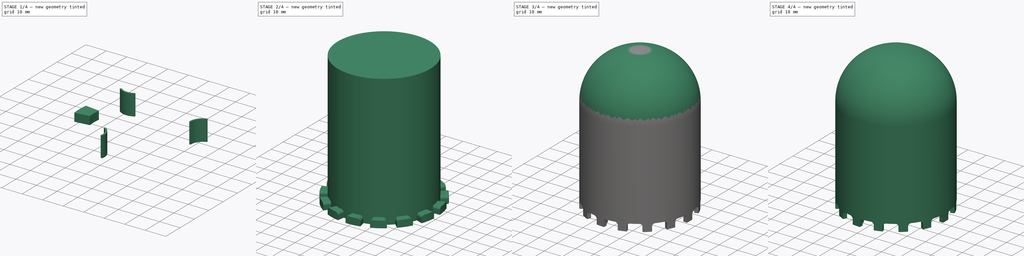
[diagram: build sequence overview — one tinted view per stage of 4, left to right]
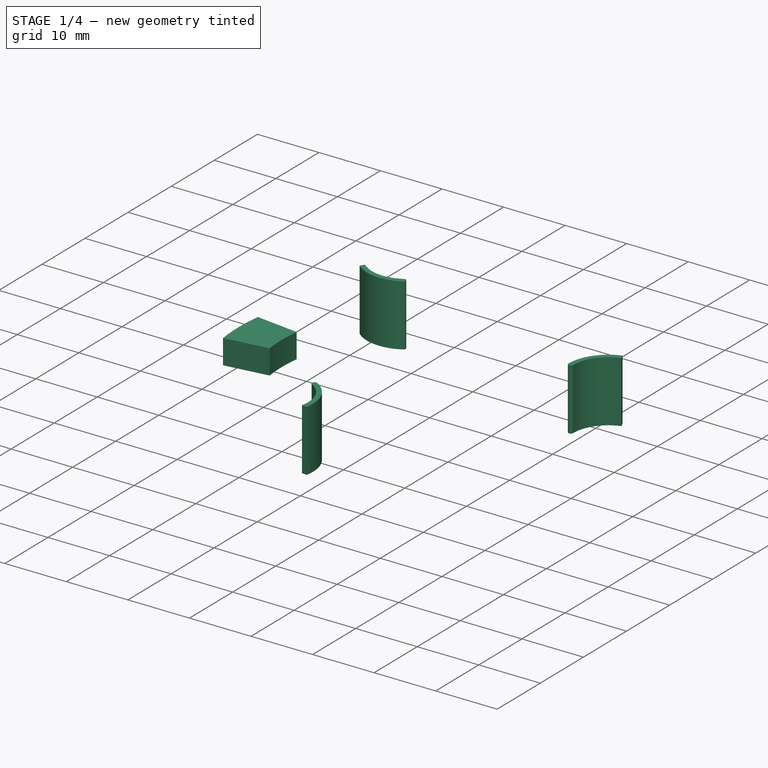
[diagram: stage 1 of 4 — iso view after this stage's code; geometry added in this stage tinted green]
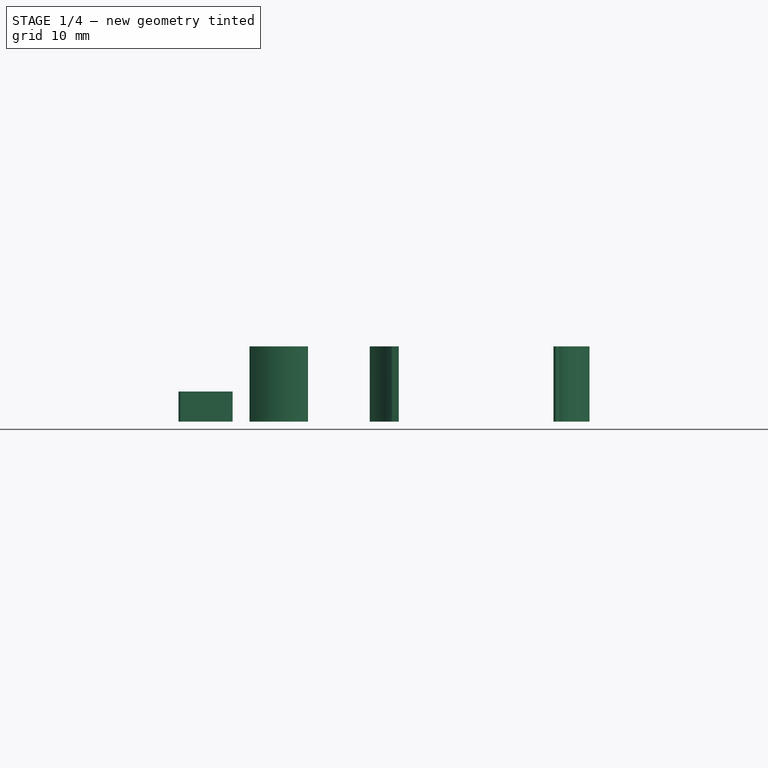
[diagram: stage 1 of 4 — front view after this stage's code; geometry added in this stage tinted green]
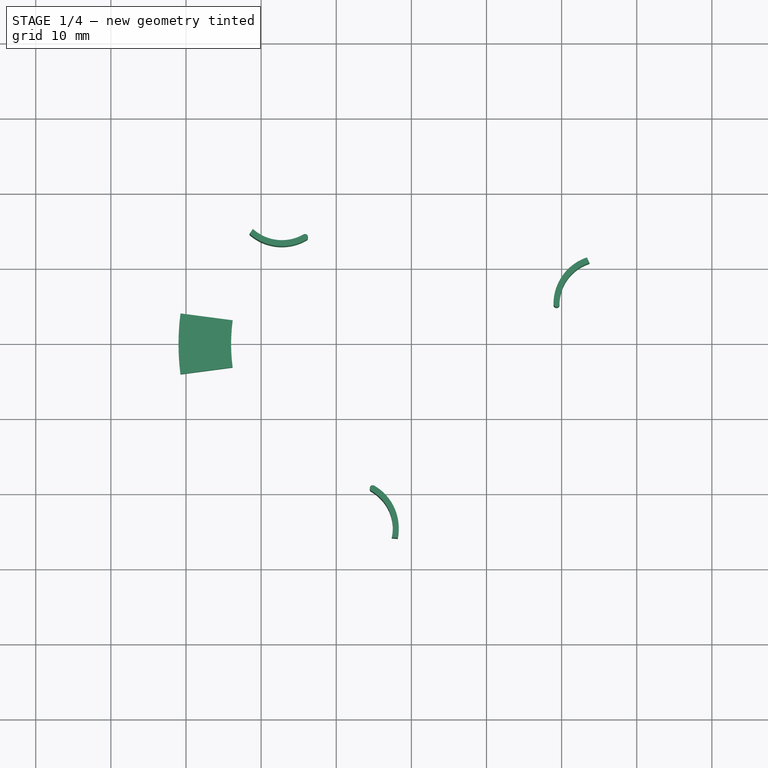
[diagram: stage 1 of 4 — top view after this stage's code; geometry added in this stage tinted green]
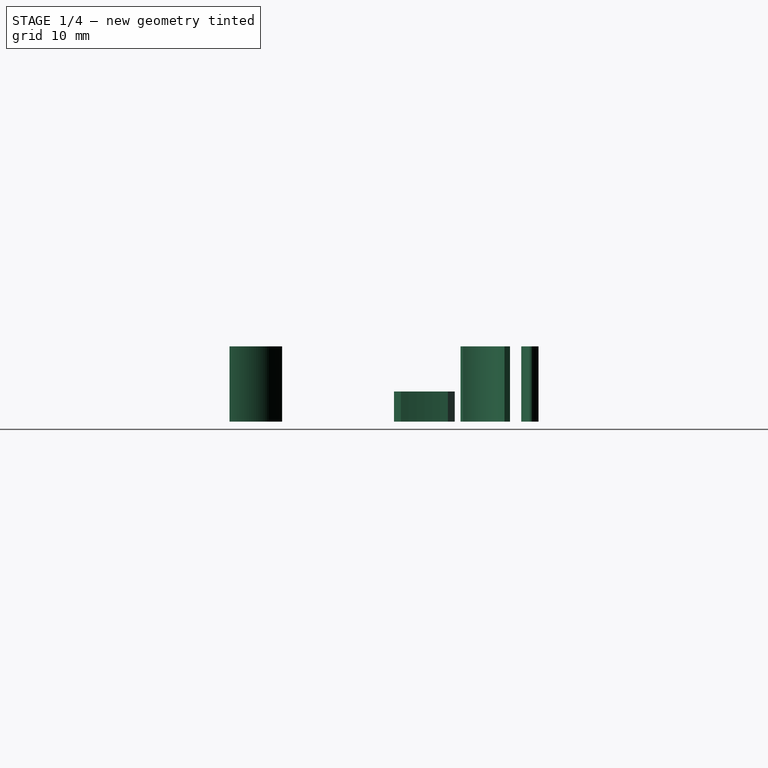
[diagram: stage 1 of 4 — right view after this stage's code; geometry added in this stage tinted green]
FCSTD DOCUMENT  (FreeCAD 0.16R6707 (Git))
Label: dome_50mm
License: CreativeCommons Attribution-ShareAlike
LicenseURL: http://creativecommons.org/licenses/by-sa/4.0/
objects: Sketcher::SketchObject×4, PartDesign::Fillet×4, PartDesign::Pad×2, Part::FeaturePython×2, PartDesign::Revolution×1, Part::Cut×1, Part::MultiFuse×1, Part::Feature×1
note: 19 computed .brp shape members not serialized (recipe doc carries the construction recipe); baked Part::Feature solids carry a one-line shape summary decoded from their .brp

FEATURE [Sketcher::SketchObject] Sketch001
  sketch-geometry (7):
    g0: ArcOfCircle CenterX=0 CenterY=0 CenterZ=0 NormalX=0 NormalY=0 NormalZ=1 Radius=24 StartAngle=3.01069 EndAngle=3.27249
    g1: ArcOfCircle CenterX=0 CenterY=0 CenterZ=0 NormalX=0 NormalY=0 NormalZ=1 Radius=31 StartAngle=3.01069 EndAngle=3.27249
    g2: LineSegment StartX=-30.7348 StartY=4.04631 StartZ=0 EndX=-23.7947 EndY=3.13263 EndZ=0
    g3: LineSegment StartX=-30.7348 StartY=-4.04631 StartZ=0 EndX=-23.7947 EndY=-3.13263 EndZ=0
    g4: LineSegment [constr] StartX=-23.7947 StartY=3.13263 StartZ=0 EndX=0 EndY=0 EndZ=0
    g5: LineSegment [constr] StartX=-23.7947 StartY=-3.13263 StartZ=0 EndX=0 EndY=0 EndZ=0
    g6: LineSegment [constr] StartX=-23.7947 StartY=3.13263 StartZ=0 EndX=-23.7947 EndY=-3.13263 EndZ=0
  constraints (18):
    c: Coincident(g0,g-1)
    c: Coincident(g1,g-1)
    c: Coincident(g2,g1)
    c: Coincident(g3,g1)
    c: Coincident(g2,g0)
    c: Coincident(g3,g0)
    c: Coincident(g4,g0)
    c: Coincident(g4,g-1)
    c: Coincident(g5,g0)
    c: Coincident(g5,g-1)
    c: Parallel(g2,g4)
    c: Parallel(g3,g5)
    c: Distance(g2) = 7
    c: Radius(g0) = 24
    c: Angle(g4,g5) = 0.261799
    c: Coincident(g6,g0)
    c: Coincident(g6,g0)
    c: Vertical(g6)
FEATURE [PartDesign::Pad] Pad
  Length = 4
  Length2 = 100
  Sketch = -> Sketch001
  Type = 0
FEATURE [Sketcher::SketchObject] Sketch002
  sketch-geometry (8):
    g0: Circle [constr] CenterX=0 CenterY=0 CenterZ=0 NormalX=0 NormalY=0 NormalZ=1 Radius=20
    g1: Circle [constr] CenterX=0 CenterY=0 CenterZ=0 NormalX=0 NormalY=0 NormalZ=1 Radius=26
    g2: ArcOfCircle CenterX=27.9618 CenterY=0.64222 CenterZ=0 NormalX=0 NormalY=0 NormalZ=1 Radius=10.5992 StartAngle=1.9714 EndAngle=2.56312
    g3: ArcOfCircle CenterX=28.2626 CenterY=0.504784 CenterZ=0 NormalX=0 NormalY=0 NormalZ=1 Radius=11.8684 StartAngle=1.99286 EndAngle=2.56609
    g4: ArcOfCircle CenterX=18.6926 CenterY=6.69498 CenterZ=0 NormalX=0 NormalY=0 NormalZ=1 Radius=0.471244 StartAngle=2.53326 EndAngle=5.70469
    g5: LineSegment StartX=23.4007 StartY=11.3317 StartZ=0 EndX=23.4007 EndY=11.3316 EndZ=0
    g6: LineSegment StartX=23.4002 StartY=11.3327 StartZ=0 EndX=24.0148 EndY=9.96436 EndZ=0
    g7: LineSegment [constr] StartX=18.3059 StartY=6.96429 StartZ=0 EndX=19.5397 EndY=6.11078 EndZ=0
  constraints (13):
    c: Coincident(g1,g0)
    c: Coincident(g0,g-1)
    c: Radius(g0) = 20
    c: Radius(g1) = 26
    c: PointOnObject(g2,g1)
    c: PointOnObject(g3,g1)
    c: Coincident(g4,g2)
    c: Tangent(g4,g2)
    c: Coincident(g5,g3)
    c: PointOnObject(g5,g1)
    c: Tangent(g5,g1)
    c: Coincident(g3,g4)
    c: Coincident(g3,g7)
FEATURE [Sketcher::SketchObject] Sketch003
  sketch-geometry (6):
    g0: Circle [constr] CenterX=0 CenterY=0 CenterZ=0 NormalX=0 NormalY=0 NormalZ=1 Radius=20
    g1: Circle [constr] CenterX=0 CenterY=0 CenterZ=0 NormalX=0 NormalY=0 NormalZ=1 Radius=26
    g2: ArcOfCircle CenterX=25.4394 CenterY=5.21015 CenterZ=0 NormalX=0 NormalY=0 NormalZ=1 Radius=5.73134 StartAngle=1.87767 EndAngle=3.14257
    g3: ArcOfCircle CenterX=25.4394 CenterY=5.21015 CenterZ=0 NormalX=0 NormalY=0 NormalZ=1 Radius=6.52527 StartAngle=1.89375 EndAngle=3.14257
    g4: ArcOfCircle CenterX=19.3111 CenterY=5.20415 CenterZ=0 NormalX=0 NormalY=0 NormalZ=1 Radius=0.396966 StartAngle=3.14256 EndAngle=6.28415
    g5: LineSegment StartX=23.3684 StartY=11.3981 StartZ=0 EndX=23.708 EndY=10.6737 EndZ=0
  constraints (15):
    c: Coincident(g0,g-1)
    c: Coincident(g1,g-1)
    c: Radius(g0) = 20
    c: Radius(g1) = 26
    c: Coincident(g3,g2)
    c: PointOnObject(g4,g0)
    c: Coincident(g4,g2)
    c: Coincident(g5,g2)
    c: Coincident(g3,g5)
    c: PointOnObject(g3,g1)
    c: PointOnObject(g2,g1)
    c: Coincident(g3,g4)
    c: Tangent(g4,g3)
    c: Tangent(g4,g2)
    c: Distance(g5) = 0.8
FEATURE [PartDesign::Pad] Pad001
  Length = 10
  Length2 = 100
  Sketch = -> Sketch003
  Type = 0
FEATURE [Part::FeaturePython] Array001  # Draft array (typed FeaturePython)
  Angle = 360
  ArrayType = 1
  Axis = (0,0,1)
  Base = -> Pad001
  Center = (0,0,0)
  Fuse = false
  IntervalAxis = (0,0,0)
  IntervalX = (1,0,0)
  IntervalY = (0,1,0)
  IntervalZ = (0,0,0)
  NumberPolar = 3
  NumberX = 0
  NumberY = 2
  NumberZ = 1
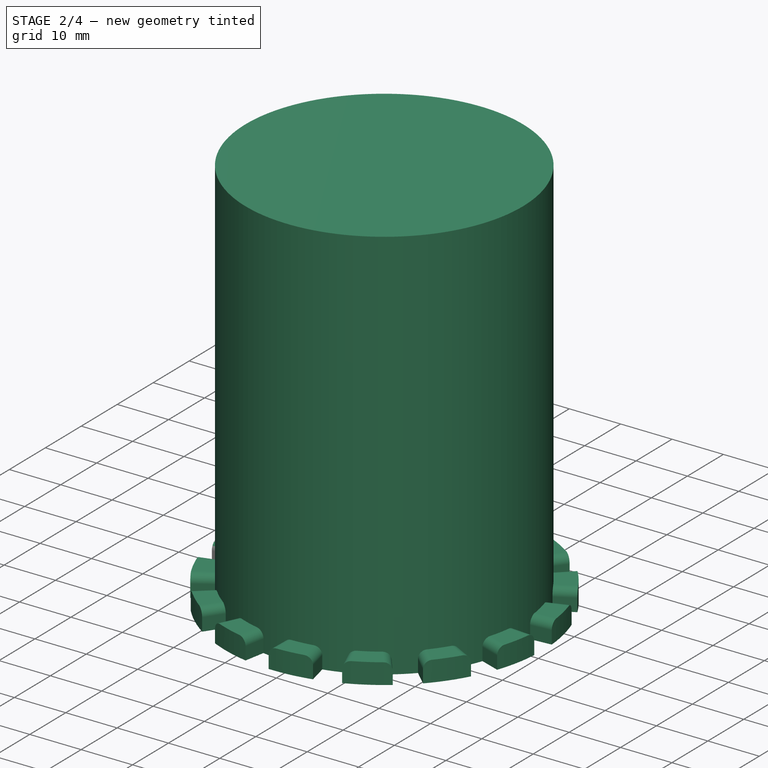
[diagram: stage 2 of 4 — iso view after this stage's code; geometry added in this stage tinted green]
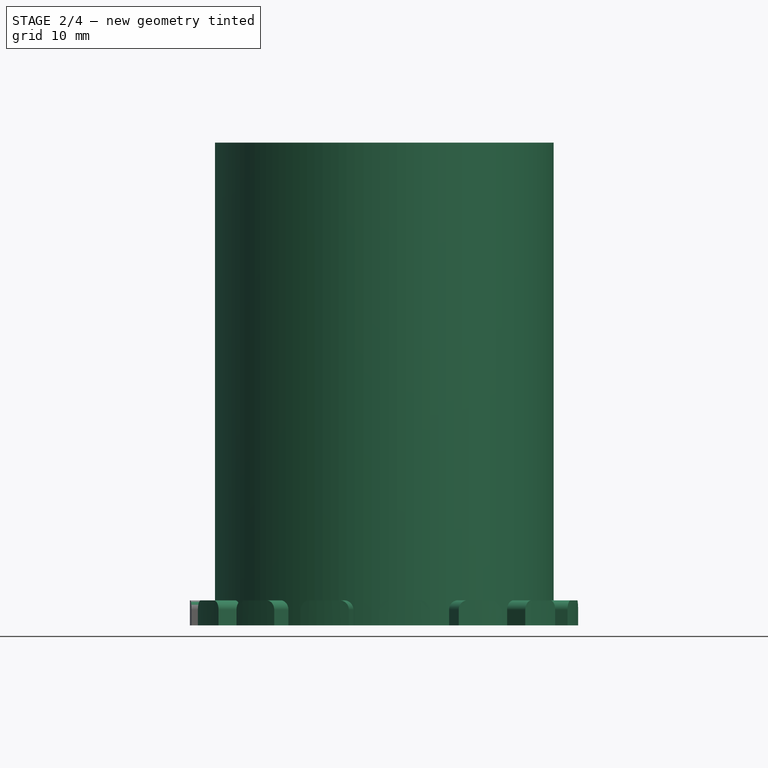
[diagram: stage 2 of 4 — front view after this stage's code; geometry added in this stage tinted green]
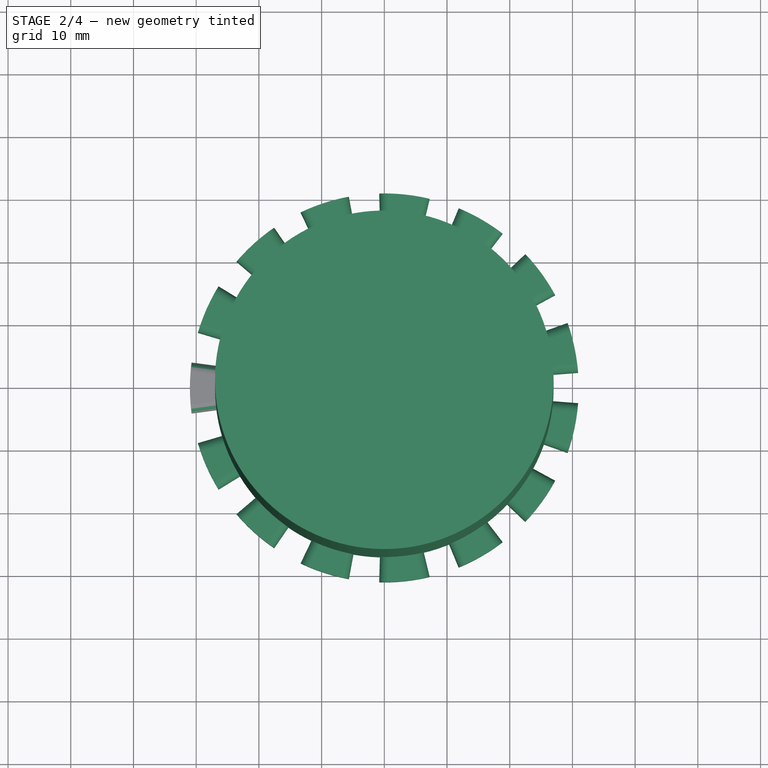
[diagram: stage 2 of 4 — top view after this stage's code; geometry added in this stage tinted green]
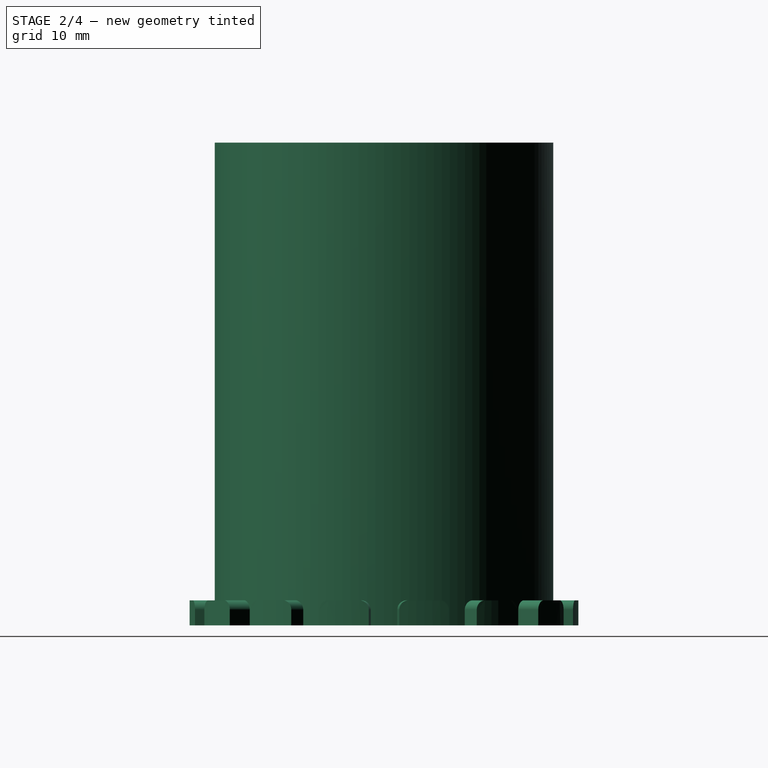
[diagram: stage 2 of 4 — right view after this stage's code; geometry added in this stage tinted green]
FEATURE [Sketcher::SketchObject] Sketch
  Placement = pos=(0,0,0) rot=(1,0,0;1.5708rad)
  sketch-geometry (7):
    g0: LineSegment StartX=-27 StartY=0 StartZ=0 EndX=-27 EndY=77 EndZ=0
    g1: LineSegment StartX=-27 StartY=77 StartZ=0 EndX=0 EndY=77 EndZ=0
    g2: LineSegment StartX=0 StartY=77 StartZ=0 EndX=0 EndY=75 EndZ=0
    g3: LineSegment StartX=0 StartY=75 StartZ=0 EndX=-3 EndY=75 EndZ=0
    g4: LineSegment StartX=-25 StartY=53 StartZ=0 EndX=-25 EndY=0 EndZ=0
    g5: LineSegment StartX=-25 StartY=0 StartZ=0 EndX=-27 EndY=0 EndZ=0
    g6: ArcOfCircle CenterX=-3 CenterY=53 CenterZ=0 NormalX=0 NormalY=0 NormalZ=1 Radius=22 StartAngle=1.5708 EndAngle=3.14159
  constraints (20):
    c: PointOnObject(g0,g-1)
    c: Vertical(g0)
    c: Coincident(g0,g1)
    c: PointOnObject(g1,g-2)
    c: Horizontal(g1)
    c: Coincident(g1,g2)
    c: Coincident(g2,g3)
    c: Horizontal(g3)
    c: PointOnObject(g4,g-1)
    c: Vertical(g4)
    c: Coincident(g4,g5)
    c: Coincident(g5,g0)
    c: PointOnObject(g2,g-2)
    c: DistanceY(g-1,g2) = 75  'h'
    c: Tangent(g3,g6) = -1.5708
    c: Tangent(g4,g6) = -1.5708
    c: DistanceX(g3,g-1) = 3
    c: DistanceX(g4,g-1) = 25
    c: DistanceY(g2,g2) = 2
    c: DistanceX(g5,g5) = 2
FEATURE [PartDesign::Revolution] Revolution
  Angle = 360
  Axis = (0,0,1)
  Base = (0,0,0)
  Placement = pos=(0,0,0) rot=(1,0,0;1.5708rad)
  ReferenceAxis = -> Sketch [V_Axis]
  Sketch = -> Sketch
FEATURE [PartDesign::Fillet] Fillet
  Base = -> Pad [Edge10,Edge4]
  Radius = 1.5
FEATURE [Part::FeaturePython] Array  # Draft array (typed FeaturePython)
  Angle = 360
  ArrayType = 1
  Axis = (0,0,1)
  Base = -> Fillet
  Center = (0,0,0)
  Fuse = false
  IntervalAxis = (0,0,0)
  IntervalX = (1,0,0)
  IntervalY = (0,1,0)
  IntervalZ = (0,0,0)
  NumberPolar = 15
  NumberX = 2
  NumberY = 2
  NumberZ = 1
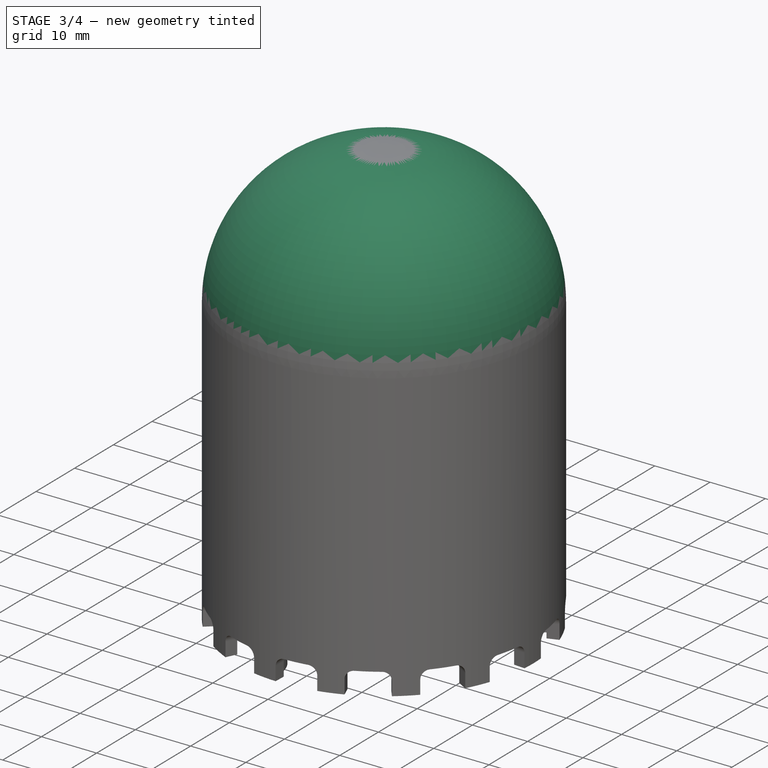
[diagram: stage 3 of 4 — iso view after this stage's code; geometry added in this stage tinted green]
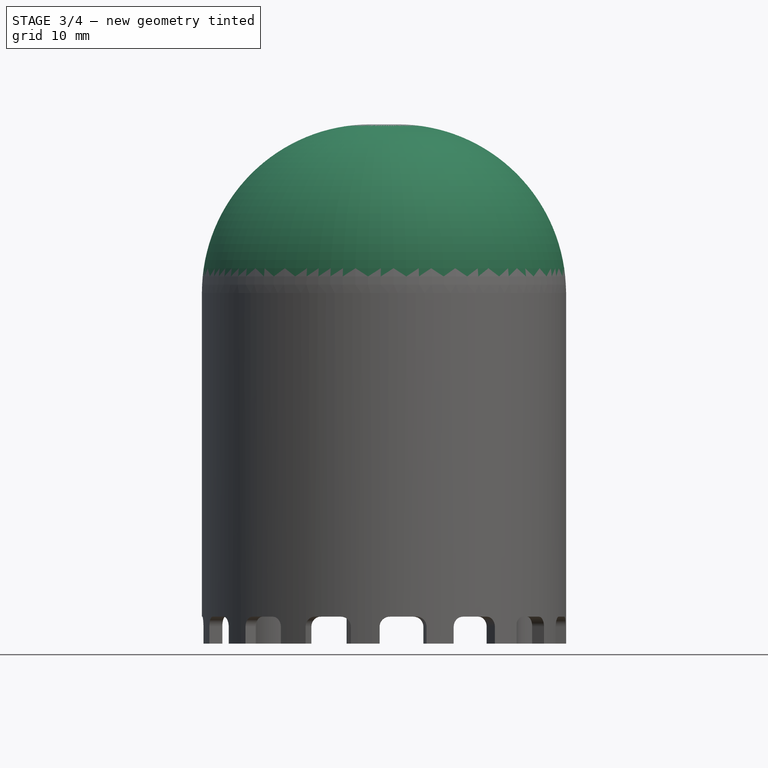
[diagram: stage 3 of 4 — front view after this stage's code; geometry added in this stage tinted green]
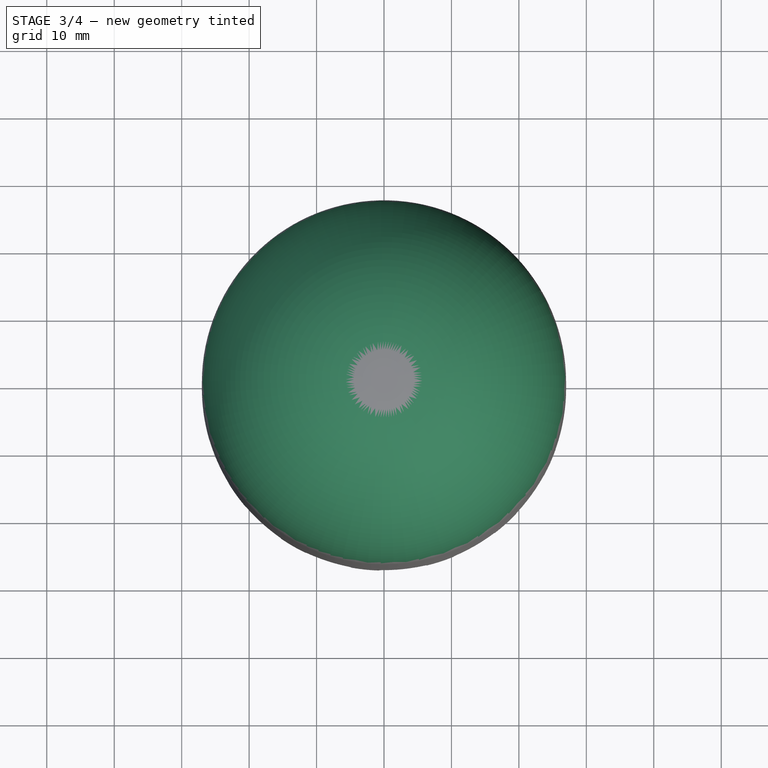
[diagram: stage 3 of 4 — top view after this stage's code; geometry added in this stage tinted green]
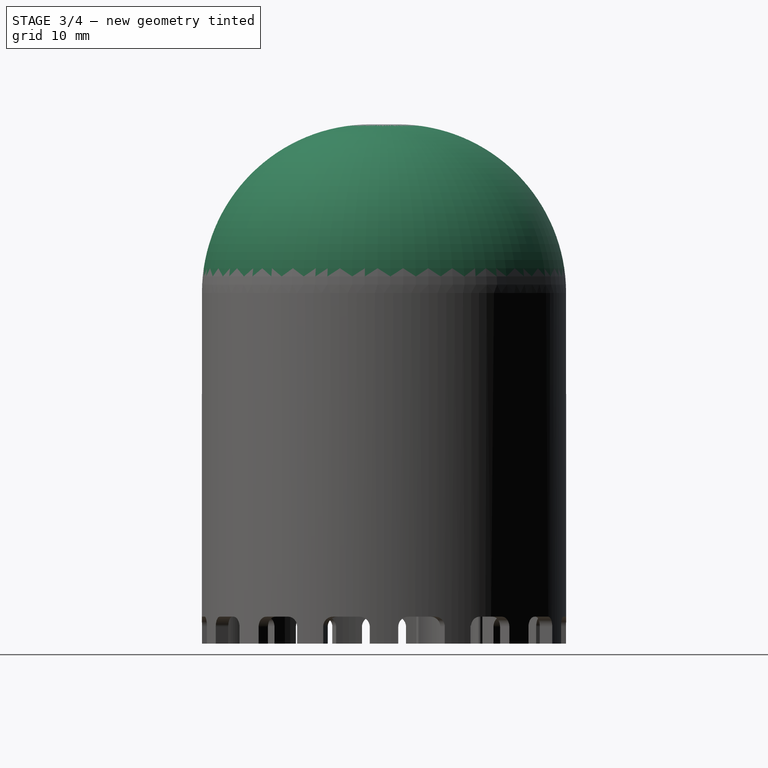
[diagram: stage 3 of 4 — right view after this stage's code; geometry added in this stage tinted green]
FEATURE [Part::Cut] Cut
  Base = -> Revolution
  Tool = -> Array
FEATURE [PartDesign::Fillet] Fillet001
  Base = -> Cut [Edge5]
  Radius = 25
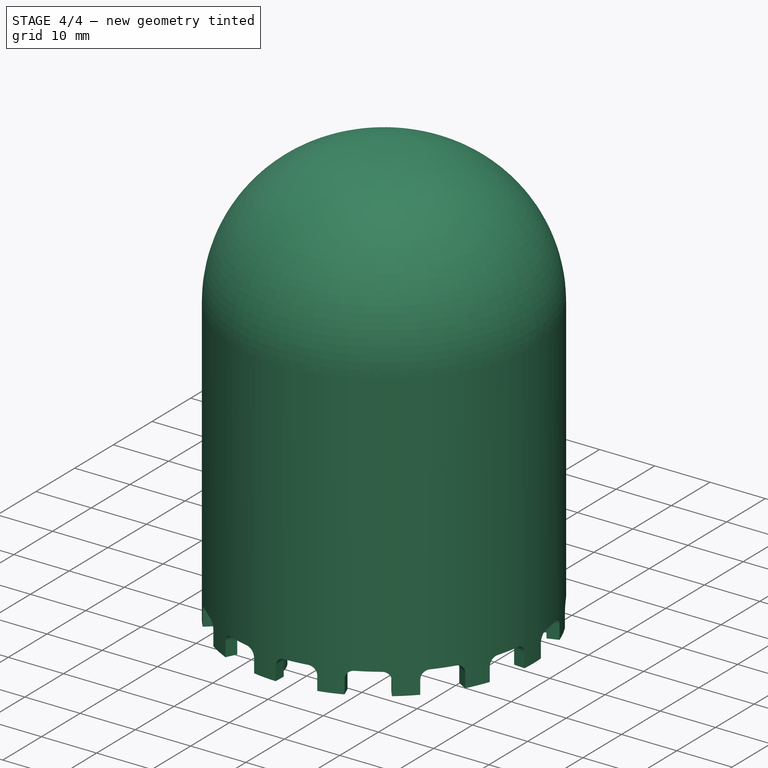
[diagram: stage 4 of 4 — iso view after this stage's code; geometry added in this stage tinted green]
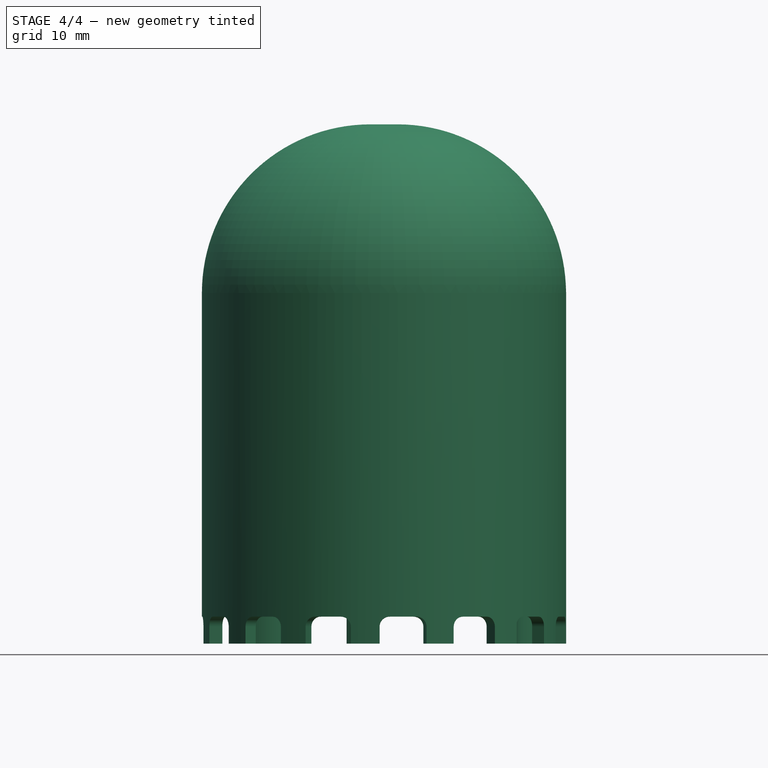
[diagram: stage 4 of 4 — front view after this stage's code; geometry added in this stage tinted green]
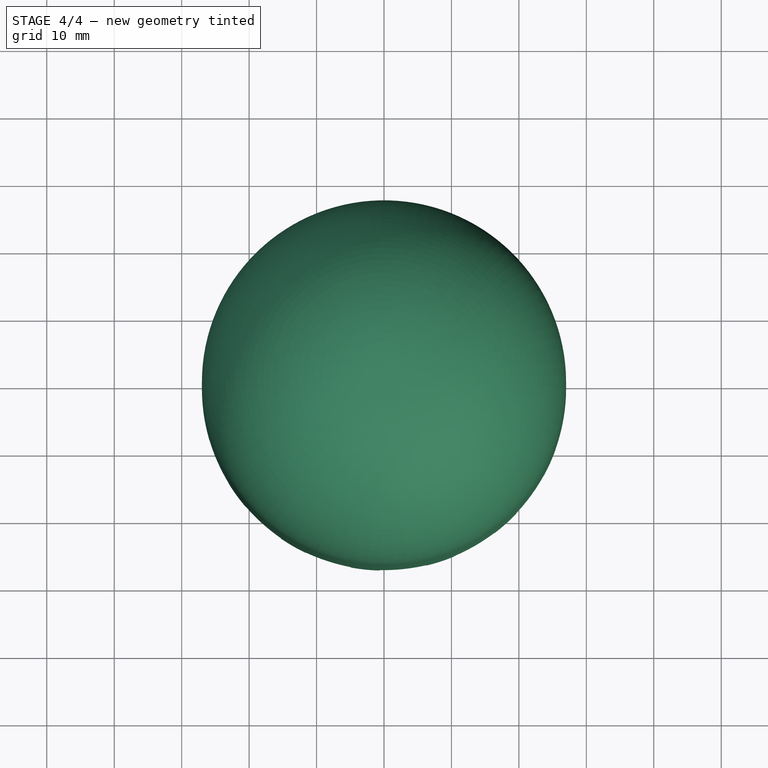
[diagram: stage 4 of 4 — top view after this stage's code; geometry added in this stage tinted green]
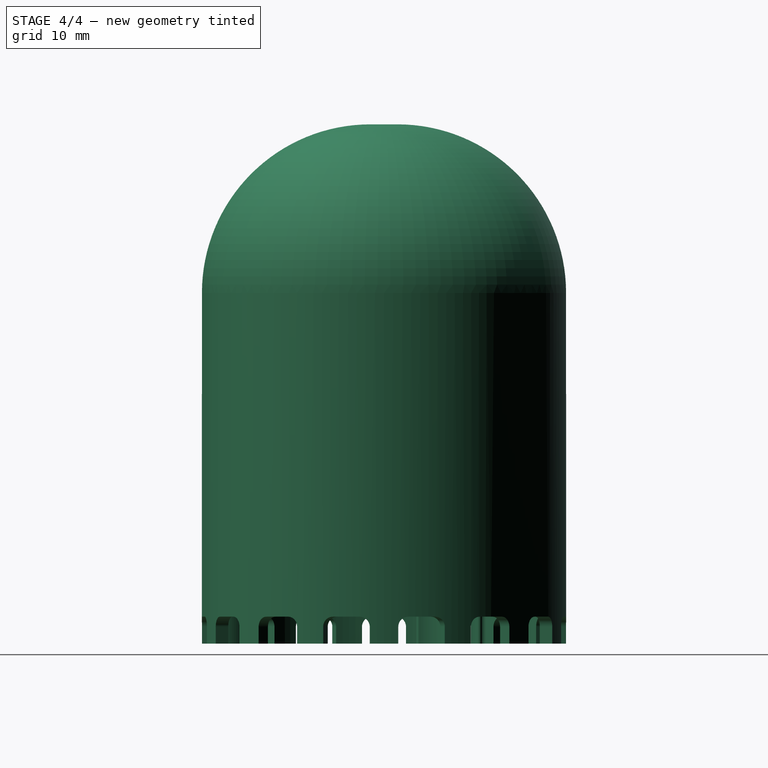
[diagram: stage 4 of 4 — right view after this stage's code; geometry added in this stage tinted green]
FEATURE [Part::MultiFuse] Fusion
  Shapes = -> [Fillet001,Array001]
FEATURE [PartDesign::Fillet] Fillet002
  Base = -> Fusion [Edge296]
  Radius = 0.6
FEATURE [PartDesign::Fillet] Fillet003
  Base = -> Fillet002 [Edge16,Edge74,Edge70,Edge79,Edge83]
  Radius = 0.6
FEATURE [Part::Feature] Fillet003001  label="Fillet004"
  shape: bbox 54 x 54.06 x 77.61 mm, 114 faces (baked)
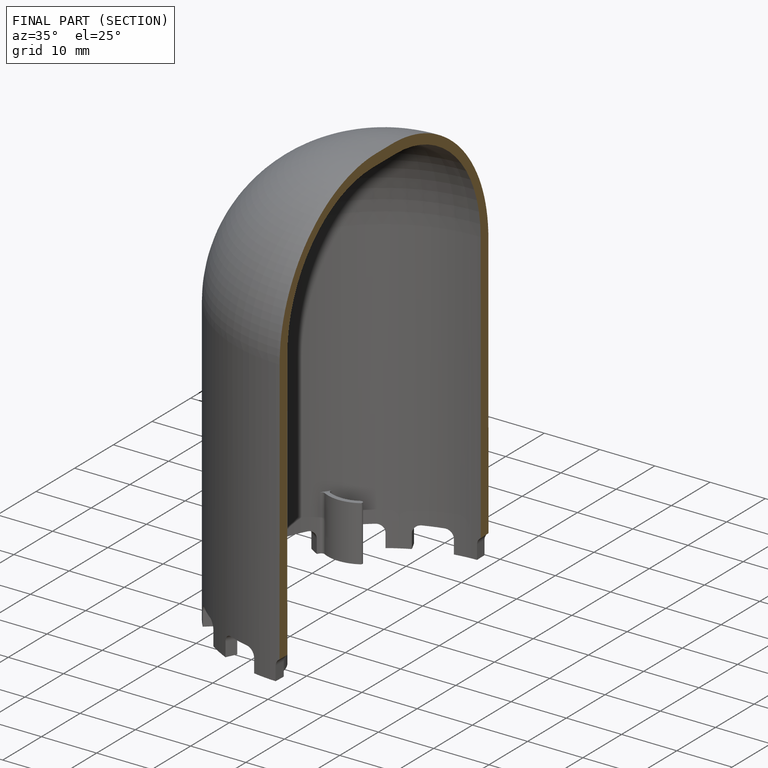
[diagram: finished part — half-section view (interior)]
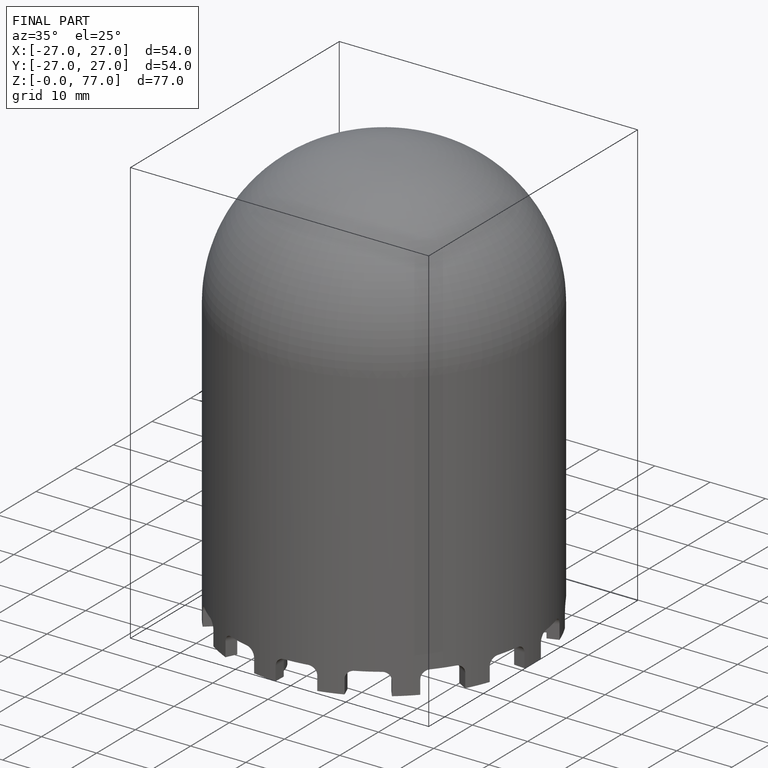
[diagram: finished part — iso view with bounding-box wireframe]
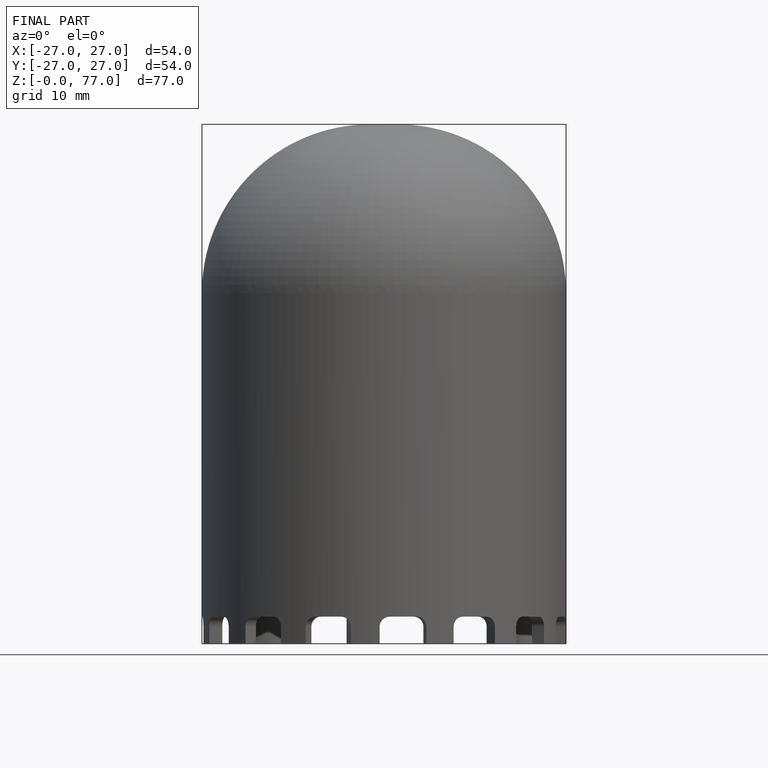
[diagram: finished part — front view with bounding-box wireframe]
